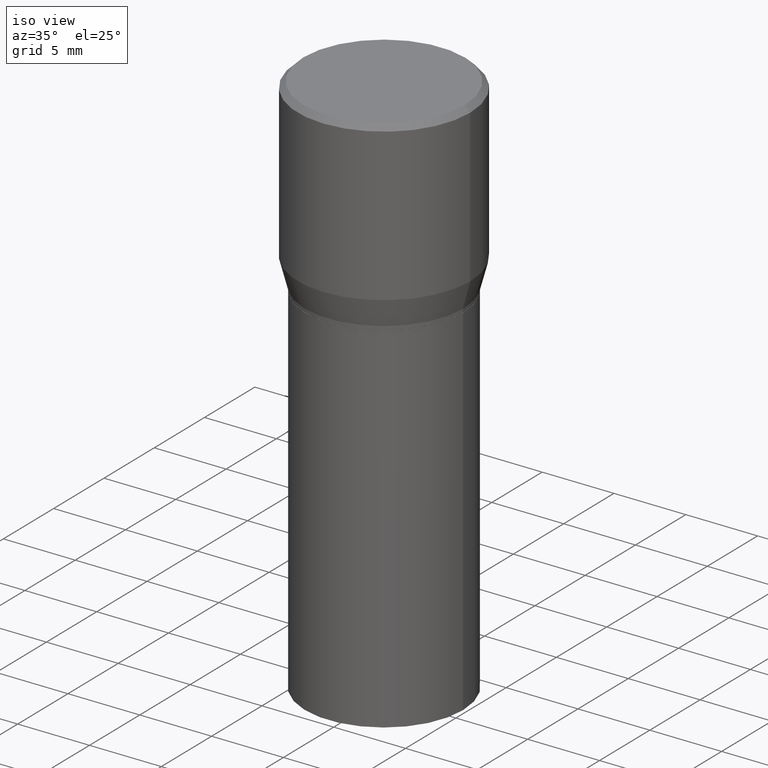
[diagram: clean part render]
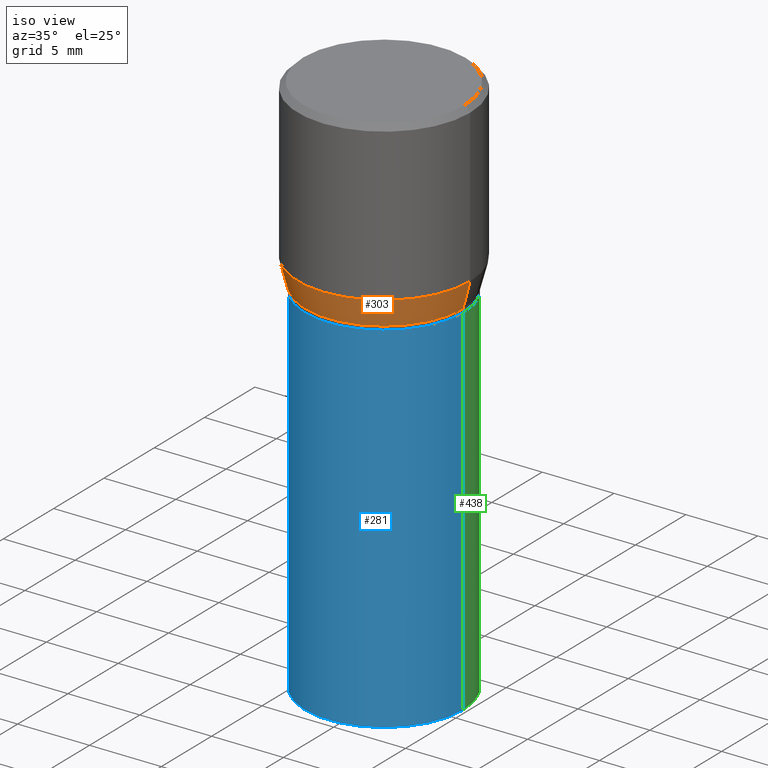
[diagram: same view with three faces highlighted in distinct colors, each labeled with its STEP entity id]
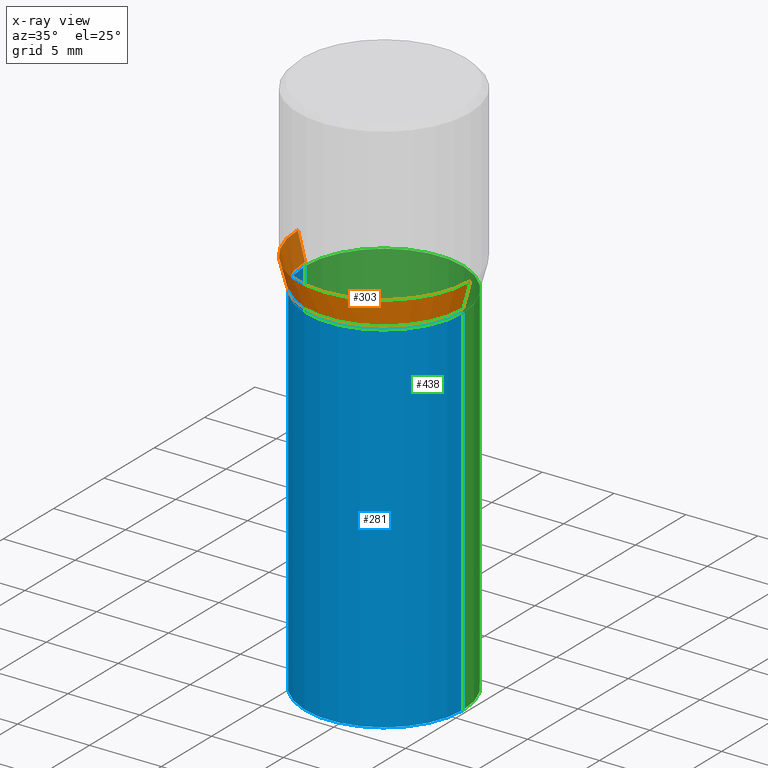
[diagram: x-ray of the same camera — body ghosted, the three highlighted faces saturated]
A machine part, iso view with three faces highlighted in distinct colors.
The next image is the same camera in x-ray (body ghosted, the three faces saturated) — at least one of them is partly hidden behind the body in this view.
Their STEP definitions:

[orange] entity #303 — the highlighted conical surface has half-angle 15 deg.
#6 = CARTESIAN_POINT ( 'NONE',  ( 0.2165500000000000480, -3.277802680905940530E-15, -0.5057000000000001494 ) ) ;
#12 = VERTEX_POINT ( 'NONE', #344 ) ;
#48 = DIRECTION ( 'NONE',  ( -2.445468806185136597E-29, 3.491481338843145583E-15, 1.000000000000000000 ) ) ;
#74 = CARTESIAN_POINT ( 'NONE',  ( -0.2165500000000000480, -2.912745497993258696E-17, -0.5057000000000001494 ) ) ;
#81 = ORIENTED_EDGE ( 'NONE', *, *, #155, .T. ) ;
#88 = VECTOR ( 'NONE', #231, 39.37007874015748143 ) ;
#103 = LINE ( 'NONE', #315, #454 ) ;
#117 = DIRECTION ( 'NONE',  ( 1.000000000000000000, -6.982962677686266711E-15, 0.000000000000000000 ) ) ;
#123 = CARTESIAN_POINT ( 'NONE',  ( -0.2165500000000000480, -2.269618187644819696E-16, -0.5057000000000001494 ) ) ;
#124 = FACE_OUTER_BOUND ( 'NONE', #185, .T. ) ;
#131 = CONICAL_SURFACE ( 'NONE', #246, 0.2165500000000000480, 0.2617993877991496854 ) ;
#143 = CARTESIAN_POINT ( 'NONE',  ( 1.057335613469222465E-29, -1.509595033060740104E-15, -0.4323652016312719559 ) ) ;
#155 = EDGE_CURVE ( 'NONE', #347, #12, #103, .T. ) ;
#158 = VERTEX_POINT ( 'NONE', #74 ) ;
#185 = EDGE_LOOP ( 'NONE', ( #193, #227, #81, #447 ) ) ;
#193 = ORIENTED_EDGE ( 'NONE', *, *, #268, .F. ) ;
#199 = AXIS2_PLACEMENT_3D ( 'NONE', #143, #214, #117 ) ;
#203 = DIRECTION ( 'NONE',  ( -2.445468806185136597E-29, 3.491481338843145583E-15, 1.000000000000000000 ) ) ;
#214 = DIRECTION ( 'NONE',  ( -2.445468806185136597E-29, 3.491481338843145583E-15, 1.000000000000000000 ) ) ;
#221 = VERTEX_POINT ( 'NONE', #247 ) ;
#227 = ORIENTED_EDGE ( 'NONE', *, *, #263, .T. ) ;
#231 = DIRECTION ( 'NONE',  ( -0.2588190451025210170, 5.211531920934547886E-15, 0.9659258262890682012 ) ) ;
#233 = CARTESIAN_POINT ( 'NONE',  ( 1.236673575287824021E-29, -1.765642113052979313E-15, -0.5057000000000001494 ) ) ;
#246 = AXIS2_PLACEMENT_3D ( 'NONE', #233, #203, #279 ) ;
#247 = CARTESIAN_POINT ( 'NONE',  ( -0.2361999999999999933, 1.687069088046165861E-16, -0.4323652016312719559 ) ) ;
#258 = CIRCLE ( 'NONE', #355, 0.2165500000000000480 ) ;
#263 = EDGE_CURVE ( 'NONE', #158, #347, #258, .T. ) ;
#268 = EDGE_CURVE ( 'NONE', #158, #221, #339, .T. ) ;
#269 = DIRECTION ( 'NONE',  ( 1.000000000000000000, -6.982962677686266711E-15, 0.000000000000000000 ) ) ;
#272 = CIRCLE ( 'NONE', #199, 0.2361999999999999933 ) ;
#279 = DIRECTION ( 'NONE',  ( 1.000000000000000000, -6.982962677686266711E-15, 0.000000000000000000 ) ) ;
#303 = ADVANCED_FACE ( 'NONE', ( #124 ), #131, .T. ) ;
#315 = CARTESIAN_POINT ( 'NONE',  ( 0.2165500000000000480, -3.277802680905940530E-15, -0.5057000000000001494 ) ) ;
#326 = DIRECTION ( 'NONE',  ( 0.2588190451025210170, 1.565188264969624531E-15, 0.9659258262890682012 ) ) ;
#339 = LINE ( 'NONE', #123, #88 ) ;
#344 = CARTESIAN_POINT ( 'NONE',  ( 0.2361999999999999933, -3.158970817530236235E-15, -0.4323652016312719559 ) ) ;
#347 = VERTEX_POINT ( 'NONE', #6 ) ;
#355 = AXIS2_PLACEMENT_3D ( 'NONE', #460, #48, #269 ) ;
#420 = EDGE_CURVE ( 'NONE', #221, #12, #272, .T. ) ;
#447 = ORIENTED_EDGE ( 'NONE', *, *, #420, .F. ) ;
#454 = VECTOR ( 'NONE', #326, 39.37007874015748143 ) ;
#460 = CARTESIAN_POINT ( 'NONE',  ( 1.236673575287824021E-29, -1.765642113052979313E-15, -0.5057000000000001494 ) ) ;

[blue] entity #281 — the highlighted cylindrical surface (partial cylindrical patch) has radius 5.5004 mm, axis along (-0, 0, 1).
#4 = CARTESIAN_POINT ( 'NONE',  ( -0.2165500000000000203, -1.980209173064567670E-15, -0.5157000000000001583 ) ) ;
#16 = ORIENTED_EDGE ( 'NONE', *, *, #118, .T. ) ;
#23 = CARTESIAN_POINT ( 'NONE',  ( 3.668203209277704895E-29, -5.237222008264718177E-15, -1.500000000000000222 ) ) ;
#33 = CARTESIAN_POINT ( 'NONE',  ( 0.2165500000000000203, -6.749382576117678999E-15, -1.500000000000000222 ) ) ;
#46 = VERTEX_POINT ( 'NONE', #426 ) ;
#51 = DIRECTION ( 'NONE',  ( -2.445468806185136597E-29, 3.491481338843145583E-15, 1.000000000000000000 ) ) ;
#70 = VERTEX_POINT ( 'NONE', #352 ) ;
#72 = DIRECTION ( 'NONE',  ( -2.445468806185136597E-29, 3.491481338843145583E-15, 1.000000000000000000 ) ) ;
#75 = VECTOR ( 'NONE', #422, 39.37007874015748143 ) ;
#86 = CYLINDRICAL_SURFACE ( 'NONE', #157, 0.2165500000000000203 ) ;
#89 = CARTESIAN_POINT ( 'NONE',  ( -0.2165500000000000203, 1.538680294288497096E-15, -1.065195393794699923E-29 ) ) ;
#91 = LINE ( 'NONE', #132, #240 ) ;
#118 = EDGE_CURVE ( 'NONE', #70, #452, #209, .T. ) ;
#122 = DIRECTION ( 'NONE',  ( -2.445468806185136877E-29, 3.491481338843145188E-15, 1.000000000000000000 ) ) ;
#132 = CARTESIAN_POINT ( 'NONE',  ( 0.2165500000000000203, -1.512160567852961217E-15, 1.055936080798610036E-29 ) ) ;
#141 = DIRECTION ( 'NONE',  ( 1.000000000000000000, -6.982962677686265133E-15, 0.000000000000000000 ) ) ;
#154 = CARTESIAN_POINT ( 'NONE',  ( 1.261128263349675426E-29, -1.800556926441410962E-15, -0.5157000000000001583 ) ) ;
#157 = AXIS2_PLACEMENT_3D ( 'NONE', #374, #51, #419 ) ;
#160 = EDGE_LOOP ( 'NONE', ( #412, #16, #234, #223 ) ) ;
#163 = CIRCLE ( 'NONE', #343, 0.2165500000000000203 ) ;
#167 = DIRECTION ( 'NONE',  ( -2.445468806185136597E-29, 3.491481338843145583E-15, 1.000000000000000000 ) ) ;
#182 = AXIS2_PLACEMENT_3D ( 'NONE', #23, #167, #309 ) ;
#209 = CIRCLE ( 'NONE', #182, 0.2165500000000000203 ) ;
#223 = ORIENTED_EDGE ( 'NONE', *, *, #350, .F. ) ;
#234 = ORIENTED_EDGE ( 'NONE', *, *, #276, .T. ) ;
#240 = VECTOR ( 'NONE', #122, 39.37007874015748143 ) ;
#265 = LINE ( 'NONE', #89, #75 ) ;
#273 = FACE_OUTER_BOUND ( 'NONE', #160, .T. ) ;
#276 = EDGE_CURVE ( 'NONE', #452, #46, #91, .T. ) ;
#281 = ADVANCED_FACE ( 'NONE', ( #273 ), #86, .T. ) ;
#286 = EDGE_CURVE ( 'NONE', #70, #413, #265, .T. ) ;
#309 = DIRECTION ( 'NONE',  ( 1.000000000000000000, -6.982962677686264344E-15, 0.000000000000000000 ) ) ;
#343 = AXIS2_PLACEMENT_3D ( 'NONE', #154, #72, #141 ) ;
#350 = EDGE_CURVE ( 'NONE', #413, #46, #163, .T. ) ;
#352 = CARTESIAN_POINT ( 'NONE',  ( -0.2165500000000000203, -1.980209173064567670E-15, -1.500000000000000222 ) ) ;
#374 = CARTESIAN_POINT ( 'NONE',  ( 0.000000000000000000, 0.000000000000000000, 0.000000000000000000 ) ) ;
#412 = ORIENTED_EDGE ( 'NONE', *, *, #286, .F. ) ;
#413 = VERTEX_POINT ( 'NONE', #4 ) ;
#419 = DIRECTION ( 'NONE',  ( 1.000000000000000000, -6.982962677686266711E-15, 4.876176775795935793E-29 ) ) ;
#422 = DIRECTION ( 'NONE',  ( -2.445468806185136877E-29, 3.491481338843145188E-15, 1.000000000000000000 ) ) ;
#426 = CARTESIAN_POINT ( 'NONE',  ( 0.2165500000000000203, -3.312717494294371784E-15, -0.5157000000000001583 ) ) ;
#452 = VERTEX_POINT ( 'NONE', #33 ) ;

[green] entity #438 — the highlighted cylindrical surface (partial cylindrical patch) has radius 5.5004 mm, axis along (-0, 0, 1).
#4 = CARTESIAN_POINT ( 'NONE',  ( -0.2165500000000000203, -1.980209173064567670E-15, -0.5157000000000001583 ) ) ;
#5 = ORIENTED_EDGE ( 'NONE', *, *, #286, .T. ) ;
#11 = DIRECTION ( 'NONE',  ( 1.000000000000000000, -6.982962677686265133E-15, 0.000000000000000000 ) ) ;
#29 = AXIS2_PLACEMENT_3D ( 'NONE', #442, #176, #11 ) ;
#33 = CARTESIAN_POINT ( 'NONE',  ( 0.2165500000000000203, -6.749382576117678999E-15, -1.500000000000000222 ) ) ;
#46 = VERTEX_POINT ( 'NONE', #426 ) ;
#63 = FACE_OUTER_BOUND ( 'NONE', #298, .T. ) ;
#70 = VERTEX_POINT ( 'NONE', #352 ) ;
#75 = VECTOR ( 'NONE', #422, 39.37007874015748143 ) ;
#89 = CARTESIAN_POINT ( 'NONE',  ( -0.2165500000000000203, 1.538680294288497096E-15, -1.065195393794699923E-29 ) ) ;
#91 = LINE ( 'NONE', #132, #240 ) ;
#122 = DIRECTION ( 'NONE',  ( -2.445468806185136877E-29, 3.491481338843145188E-15, 1.000000000000000000 ) ) ;
#132 = CARTESIAN_POINT ( 'NONE',  ( 0.2165500000000000203, -1.512160567852961217E-15, 1.055936080798610036E-29 ) ) ;
#140 = ORIENTED_EDGE ( 'NONE', *, *, #378, .T. ) ;
#166 = CIRCLE ( 'NONE', #377, 0.2165500000000000203 ) ;
#172 = AXIS2_PLACEMENT_3D ( 'NONE', #329, #409, #245 ) ;
#176 = DIRECTION ( 'NONE',  ( -2.445468806185136597E-29, 3.491481338843145583E-15, 1.000000000000000000 ) ) ;
#178 = ORIENTED_EDGE ( 'NONE', *, *, #276, .F. ) ;
#222 = DIRECTION ( 'NONE',  ( 1.000000000000000000, -6.982962677686264344E-15, 0.000000000000000000 ) ) ;
#226 = ORIENTED_EDGE ( 'NONE', *, *, #376, .F. ) ;
#240 = VECTOR ( 'NONE', #122, 39.37007874015748143 ) ;
#245 = DIRECTION ( 'NONE',  ( 1.000000000000000000, -6.982962677686266711E-15, 4.876176775795935793E-29 ) ) ;
#260 = CIRCLE ( 'NONE', #29, 0.2165500000000000203 ) ;
#265 = LINE ( 'NONE', #89, #75 ) ;
#276 = EDGE_CURVE ( 'NONE', #452, #46, #91, .T. ) ;
#286 = EDGE_CURVE ( 'NONE', #70, #413, #265, .T. ) ;
#292 = CYLINDRICAL_SURFACE ( 'NONE', #172, 0.2165500000000000203 ) ;
#295 = CARTESIAN_POINT ( 'NONE',  ( 3.668203209277704895E-29, -5.237222008264718177E-15, -1.500000000000000222 ) ) ;
#298 = EDGE_LOOP ( 'NONE', ( #140, #5, #226, #178 ) ) ;
#329 = CARTESIAN_POINT ( 'NONE',  ( 0.000000000000000000, 0.000000000000000000, 0.000000000000000000 ) ) ;
#352 = CARTESIAN_POINT ( 'NONE',  ( -0.2165500000000000203, -1.980209173064567670E-15, -1.500000000000000222 ) ) ;
#376 = EDGE_CURVE ( 'NONE', #46, #413, #260, .T. ) ;
#377 = AXIS2_PLACEMENT_3D ( 'NONE', #295, #448, #222 ) ;
#378 = EDGE_CURVE ( 'NONE', #452, #70, #166, .T. ) ;
#409 = DIRECTION ( 'NONE',  ( -2.445468806185136597E-29, 3.491481338843145583E-15, 1.000000000000000000 ) ) ;
#413 = VERTEX_POINT ( 'NONE', #4 ) ;
#422 = DIRECTION ( 'NONE',  ( -2.445468806185136877E-29, 3.491481338843145188E-15, 1.000000000000000000 ) ) ;
#426 = CARTESIAN_POINT ( 'NONE',  ( 0.2165500000000000203, -3.312717494294371784E-15, -0.5157000000000001583 ) ) ;
#438 = ADVANCED_FACE ( 'NONE', ( #63 ), #292, .T. ) ;
#442 = CARTESIAN_POINT ( 'NONE',  ( 1.261128263349675426E-29, -1.800556926441410962E-15, -0.5157000000000001583 ) ) ;
#448 = DIRECTION ( 'NONE',  ( -2.445468806185136597E-29, 3.491481338843145583E-15, 1.000000000000000000 ) ) ;
#452 = VERTEX_POINT ( 'NONE', #33 ) ;